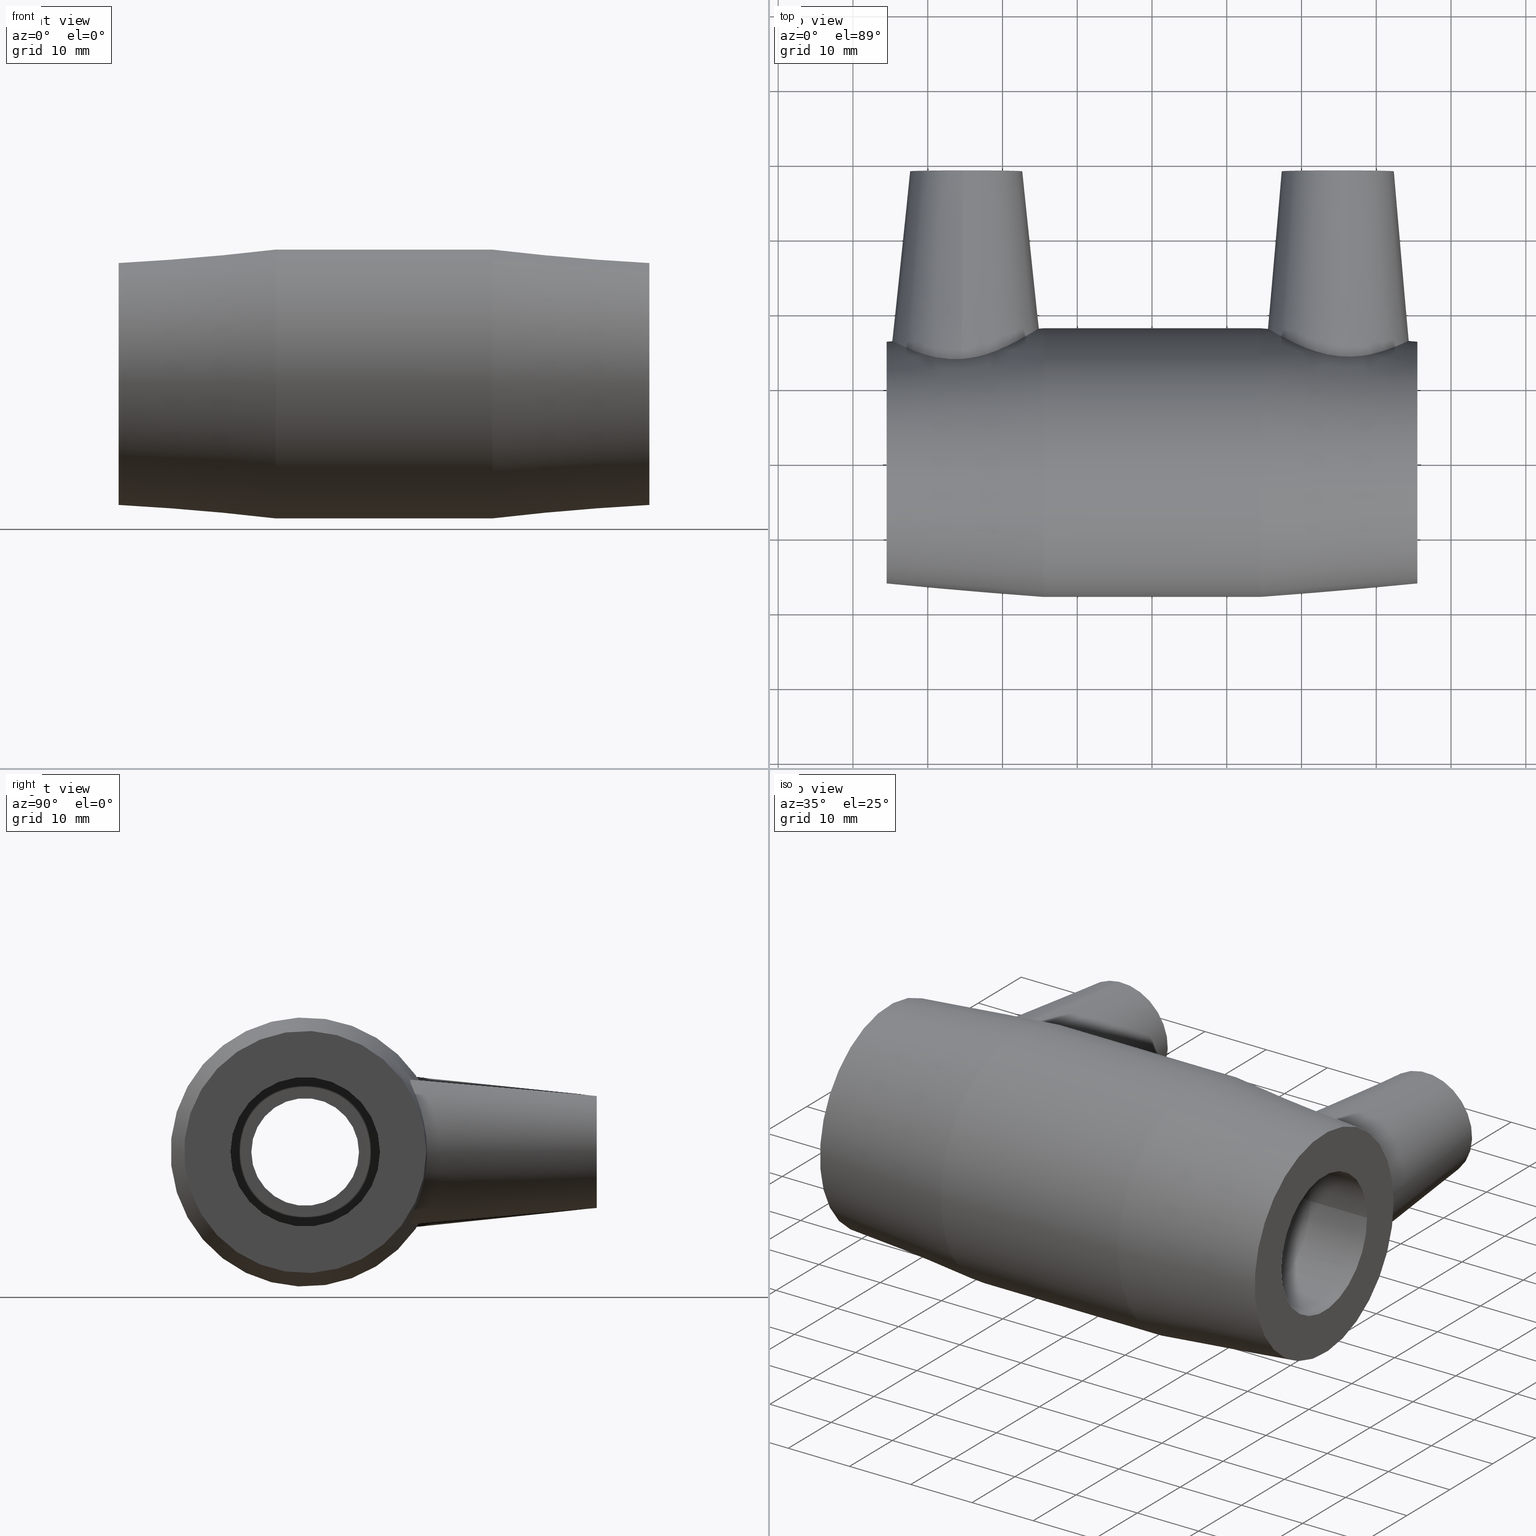
[diagram: canonical four-view strip — front | top / right | iso, engineering-drawing reading convention]
A machine part, canonical four-view strip (front | top / right | iso — engineering-drawing reading convention). The complete STEP part file that produces these views, byte-faithful:
ISO-10303-21;
HEADER;
/* Generated by software containing ST-Developer
 * from STEP Tools, Inc. (www.steptools.com) 
 */

FILE_DESCRIPTION(
/* description */ ('PLASSON REDUCING COUPLER 20-16'),
/* implementation_level */ '2;1');

FILE_NAME(
/* name */ 
'C:\\Dropbox\\KIMPROJECTS-Inventor\\99-16-3568-Processing\\ElectroFusi
on Fittings\\491104\\491104020016.ipt.stp',
/* time_stamp */ '2017-11-06T09:12:25+02:00',
/* author */ ('KIM'),
/* organization */ (''),
/* preprocessor_version */ 'ST-DEVELOPER v15.6',
/* originating_system */ 'Autodesk Inventor 2015',
/* authorisation */ '');

FILE_SCHEMA (('AUTOMOTIVE_DESIGN { 1 0 10303 214 3 1 1 }'));
ENDSEC;

DATA;
#10=MECHANICAL_DESIGN_GEOMETRIC_PRESENTATION_REPRESENTATION('',(#13),#671);
#11=SHAPE_REPRESENTATION_RELATIONSHIP('SRR','None',#680,#12);
#12=ADVANCED_BREP_SHAPE_REPRESENTATION($,(#14),#670);
#13=STYLED_ITEM('',(#689),#14);
#14=MANIFOLD_SOLID_BREP('Solid1',#334);
#15=B_SPLINE_CURVE_WITH_KNOTS('',3,(#527,#528,#529,#530,#531,#532,#533,
#534,#535,#536,#537,#538,#539,#540,#541,#542,#543,#544,#545,#546,#547,#548,
#549,#550,#551,#552,#553,#554,#555,#556,#557,#558,#559,#560,#561,#562,#563,
#564),.UNSPECIFIED.,.T.,.F.,(4,2,2,2,2,2,2,2,2,2,2,2,2,2,2,2,2,2,4),(0.,
0.176861838279988,0.353723676559975,0.70744735311995,1.0635954870431,1.41974362096625,
1.7758917548894,2.13203988881255,2.48576356537253,2.66262540365251,2.8394872419325,
3.23294618645652,3.62640513098054,4.00458566111133,4.38276619124212,4.7609467213729,
5.13912725150369,5.53258619602771,5.92604514055173),.UNSPECIFIED.);
#16=B_SPLINE_CURVE_WITH_KNOTS('',3,(#579,#580,#581,#582,#583,#584,#585,
#586,#587,#588,#589,#590,#591,#592,#593,#594,#595,#596,#597,#598,#599,#600,
#601,#602,#603,#604,#605,#606,#607,#608,#609,#610,#611,#612,#613,#614,#615,
#616),.UNSPECIFIED.,.T.,.F.,(4,2,2,2,2,2,2,2,2,2,2,2,2,2,2,2,2,2,4),(0.,
0.185299201020155,0.370598402040309,0.741196804080619,1.11369570266722,
1.48619460125382,1.85869349984042,2.23119239842702,2.60179080046733,2.78709000148748,
2.97238920250763,3.3877355594393,3.80308191637097,4.19848920143802,4.59389648650506,
4.98930377157211,5.38471105663916,5.80005741357083,6.2154037705025),
 .UNSPECIFIED.);
#17=CONICAL_SURFACE('',#348,7.5,5.);
#18=CONICAL_SURFACE('',#357,7.5,6.);
#19=CONICAL_SURFACE('',#361,17.1,4.89909245378776);
#20=CONICAL_SURFACE('',#367,10.4959653105634,12.);
#21=CONICAL_SURFACE('',#373,8.99999999999999,89.4270613023174);
#22=CONICAL_SURFACE('',#385,8.49596531056338,12.);
#23=CONICAL_SURFACE('',#391,17.1,4.89909245378775);
#24=FACE_BOUND('',#95,.T.);
#25=FACE_BOUND('',#97,.T.);
#26=FACE_BOUND('',#99,.T.);
#27=FACE_BOUND('',#101,.T.);
#28=FACE_BOUND('',#103,.T.);
#29=FACE_BOUND('',#105,.T.);
#30=FACE_BOUND('',#107,.T.);
#31=FACE_BOUND('',#109,.T.);
#32=FACE_BOUND('',#111,.T.);
#33=FACE_BOUND('',#113,.T.);
#34=FACE_BOUND('',#115,.T.);
#35=FACE_BOUND('',#117,.T.);
#36=FACE_BOUND('',#118,.T.);
#37=FACE_BOUND('',#120,.T.);
#38=FACE_BOUND('',#122,.T.);
#39=FACE_BOUND('',#124,.T.);
#40=FACE_BOUND('',#126,.T.);
#41=FACE_BOUND('',#128,.T.);
#42=FACE_BOUND('',#130,.T.);
#43=FACE_BOUND('',#132,.T.);
#44=FACE_BOUND('',#134,.T.);
#45=FACE_BOUND('',#136,.T.);
#46=FACE_BOUND('',#138,.T.);
#47=FACE_BOUND('',#140,.T.);
#48=FACE_BOUND('',#142,.T.);
#49=FACE_BOUND('',#144,.T.);
#50=FACE_BOUND('',#146,.T.);
#51=FACE_BOUND('',#148,.T.);
#52=FACE_BOUND('',#149,.T.);
#53=CYLINDRICAL_SURFACE('',#340,2.);
#54=CYLINDRICAL_SURFACE('',#342,5.);
#55=CYLINDRICAL_SURFACE('',#349,2.);
#56=CYLINDRICAL_SURFACE('',#351,5.);
#57=CYLINDRICAL_SURFACE('',#358,18.);
#58=CYLINDRICAL_SURFACE('',#365,9.99999999999999);
#59=CYLINDRICAL_SURFACE('',#371,9.99999999999999);
#60=CYLINDRICAL_SURFACE('',#377,7.19999999999999);
#61=CYLINDRICAL_SURFACE('',#381,8.);
#62=CYLINDRICAL_SURFACE('',#387,8.);
#63=FACE_OUTER_BOUND('',#92,.T.);
#64=FACE_OUTER_BOUND('',#93,.T.);
#65=FACE_OUTER_BOUND('',#94,.T.);
#66=FACE_OUTER_BOUND('',#96,.T.);
#67=FACE_OUTER_BOUND('',#98,.T.);
#68=FACE_OUTER_BOUND('',#100,.T.);
#69=FACE_OUTER_BOUND('',#102,.T.);
#70=FACE_OUTER_BOUND('',#104,.T.);
#71=FACE_OUTER_BOUND('',#106,.T.);
#72=FACE_OUTER_BOUND('',#108,.T.);
#73=FACE_OUTER_BOUND('',#110,.T.);
#74=FACE_OUTER_BOUND('',#112,.T.);
#75=FACE_OUTER_BOUND('',#114,.T.);
#76=FACE_OUTER_BOUND('',#116,.T.);
#77=FACE_OUTER_BOUND('',#119,.T.);
#78=FACE_OUTER_BOUND('',#121,.T.);
#79=FACE_OUTER_BOUND('',#123,.T.);
#80=FACE_OUTER_BOUND('',#125,.T.);
#81=FACE_OUTER_BOUND('',#127,.T.);
#82=FACE_OUTER_BOUND('',#129,.T.);
#83=FACE_OUTER_BOUND('',#131,.T.);
#84=FACE_OUTER_BOUND('',#133,.T.);
#85=FACE_OUTER_BOUND('',#135,.T.);
#86=FACE_OUTER_BOUND('',#137,.T.);
#87=FACE_OUTER_BOUND('',#139,.T.);
#88=FACE_OUTER_BOUND('',#141,.T.);
#89=FACE_OUTER_BOUND('',#143,.T.);
#90=FACE_OUTER_BOUND('',#145,.T.);
#91=FACE_OUTER_BOUND('',#147,.T.);
#92=EDGE_LOOP('',(#235));
#93=EDGE_LOOP('',(#236));
#94=EDGE_LOOP('',(#237));
#95=EDGE_LOOP('',(#238));
#96=EDGE_LOOP('',(#239));
#97=EDGE_LOOP('',(#240));
#98=EDGE_LOOP('',(#241));
#99=EDGE_LOOP('',(#242));
#100=EDGE_LOOP('',(#243));
#101=EDGE_LOOP('',(#244));
#102=EDGE_LOOP('',(#245));
#103=EDGE_LOOP('',(#246));
#104=EDGE_LOOP('',(#247));
#105=EDGE_LOOP('',(#248));
#106=EDGE_LOOP('',(#249));
#107=EDGE_LOOP('',(#250));
#108=EDGE_LOOP('',(#251));
#109=EDGE_LOOP('',(#252));
#110=EDGE_LOOP('',(#253));
#111=EDGE_LOOP('',(#254));
#112=EDGE_LOOP('',(#255));
#113=EDGE_LOOP('',(#256));
#114=EDGE_LOOP('',(#257));
#115=EDGE_LOOP('',(#258));
#116=EDGE_LOOP('',(#259));
#117=EDGE_LOOP('',(#260));
#118=EDGE_LOOP('',(#261));
#119=EDGE_LOOP('',(#262));
#120=EDGE_LOOP('',(#263));
#121=EDGE_LOOP('',(#264));
#122=EDGE_LOOP('',(#265));
#123=EDGE_LOOP('',(#266));
#124=EDGE_LOOP('',(#267));
#125=EDGE_LOOP('',(#268));
#126=EDGE_LOOP('',(#269));
#127=EDGE_LOOP('',(#270));
#128=EDGE_LOOP('',(#271));
#129=EDGE_LOOP('',(#272));
#130=EDGE_LOOP('',(#273));
#131=EDGE_LOOP('',(#274));
#132=EDGE_LOOP('',(#275));
#133=EDGE_LOOP('',(#276));
#134=EDGE_LOOP('',(#277));
#135=EDGE_LOOP('',(#278));
#136=EDGE_LOOP('',(#279));
#137=EDGE_LOOP('',(#280));
#138=EDGE_LOOP('',(#281));
#139=EDGE_LOOP('',(#282));
#140=EDGE_LOOP('',(#283));
#141=EDGE_LOOP('',(#284));
#142=EDGE_LOOP('',(#285));
#143=EDGE_LOOP('',(#286));
#144=EDGE_LOOP('',(#287));
#145=EDGE_LOOP('',(#288));
#146=EDGE_LOOP('',(#289));
#147=EDGE_LOOP('',(#290));
#148=EDGE_LOOP('',(#291));
#149=EDGE_LOOP('',(#292));
#150=CIRCLE('',#337,2.);
#151=CIRCLE('',#339,2.);
#152=CIRCLE('',#341,2.);
#153=CIRCLE('',#343,5.);
#154=CIRCLE('',#344,5.);
#155=CIRCLE('',#347,7.5);
#156=CIRCLE('',#350,2.);
#157=CIRCLE('',#352,5.);
#158=CIRCLE('',#353,5.);
#159=CIRCLE('',#356,7.5);
#160=CIRCLE('',#359,18.);
#161=CIRCLE('',#360,18.);
#162=CIRCLE('',#362,16.2);
#163=CIRCLE('',#364,9.99999999999999);
#164=CIRCLE('',#366,9.99999999999999);
#165=CIRCLE('',#368,10.9919306211268);
#166=CIRCLE('',#370,9.99999999999999);
#167=CIRCLE('',#372,9.99999999999999);
#168=CIRCLE('',#374,7.99999999999999);
#169=CIRCLE('',#376,7.19999999999999);
#170=CIRCLE('',#378,7.19999999999999);
#171=CIRCLE('',#380,7.99999999999999);
#172=CIRCLE('',#382,8.);
#173=CIRCLE('',#384,8.99193062112677);
#174=CIRCLE('',#386,8.);
#175=CIRCLE('',#388,8.);
#176=CIRCLE('',#390,16.2);
#177=VERTEX_POINT('',#508);
#178=VERTEX_POINT('',#511);
#179=VERTEX_POINT('',#514);
#180=VERTEX_POINT('',#517);
#181=VERTEX_POINT('',#519);
#182=VERTEX_POINT('',#523);
#183=VERTEX_POINT('',#526);
#184=VERTEX_POINT('',#566);
#185=VERTEX_POINT('',#569);
#186=VERTEX_POINT('',#571);
#187=VERTEX_POINT('',#575);
#188=VERTEX_POINT('',#578);
#189=VERTEX_POINT('',#618);
#190=VERTEX_POINT('',#620);
#191=VERTEX_POINT('',#623);
#192=VERTEX_POINT('',#626);
#193=VERTEX_POINT('',#629);
#194=VERTEX_POINT('',#632);
#195=VERTEX_POINT('',#635);
#196=VERTEX_POINT('',#638);
#197=VERTEX_POINT('',#641);
#198=VERTEX_POINT('',#644);
#199=VERTEX_POINT('',#647);
#200=VERTEX_POINT('',#650);
#201=VERTEX_POINT('',#653);
#202=VERTEX_POINT('',#656);
#203=VERTEX_POINT('',#659);
#204=VERTEX_POINT('',#662);
#205=VERTEX_POINT('',#665);
#206=EDGE_CURVE('',#177,#177,#150,.T.);
#207=EDGE_CURVE('',#178,#178,#151,.T.);
#208=EDGE_CURVE('',#179,#179,#152,.T.);
#209=EDGE_CURVE('',#180,#180,#153,.T.);
#210=EDGE_CURVE('',#181,#181,#154,.T.);
#211=EDGE_CURVE('',#182,#182,#155,.T.);
#212=EDGE_CURVE('',#183,#183,#15,.T.);
#213=EDGE_CURVE('',#184,#184,#156,.T.);
#214=EDGE_CURVE('',#185,#185,#157,.T.);
#215=EDGE_CURVE('',#186,#186,#158,.T.);
#216=EDGE_CURVE('',#187,#187,#159,.T.);
#217=EDGE_CURVE('',#188,#188,#16,.T.);
#218=EDGE_CURVE('',#189,#189,#160,.T.);
#219=EDGE_CURVE('',#190,#190,#161,.T.);
#220=EDGE_CURVE('',#191,#191,#162,.T.);
#221=EDGE_CURVE('',#192,#192,#163,.T.);
#222=EDGE_CURVE('',#193,#193,#164,.T.);
#223=EDGE_CURVE('',#194,#194,#165,.T.);
#224=EDGE_CURVE('',#195,#195,#166,.T.);
#225=EDGE_CURVE('',#196,#196,#167,.T.);
#226=EDGE_CURVE('',#197,#197,#168,.T.);
#227=EDGE_CURVE('',#198,#198,#169,.T.);
#228=EDGE_CURVE('',#199,#199,#170,.T.);
#229=EDGE_CURVE('',#200,#200,#171,.T.);
#230=EDGE_CURVE('',#201,#201,#172,.T.);
#231=EDGE_CURVE('',#202,#202,#173,.T.);
#232=EDGE_CURVE('',#203,#203,#174,.T.);
#233=EDGE_CURVE('',#204,#204,#175,.T.);
#234=EDGE_CURVE('',#205,#205,#176,.T.);
#235=ORIENTED_EDGE('',*,*,#206,.F.);
#236=ORIENTED_EDGE('',*,*,#207,.F.);
#237=ORIENTED_EDGE('',*,*,#206,.T.);
#238=ORIENTED_EDGE('',*,*,#208,.T.);
#239=ORIENTED_EDGE('',*,*,#209,.T.);
#240=ORIENTED_EDGE('',*,*,#210,.F.);
#241=ORIENTED_EDGE('',*,*,#209,.F.);
#242=ORIENTED_EDGE('',*,*,#208,.F.);
#243=ORIENTED_EDGE('',*,*,#211,.F.);
#244=ORIENTED_EDGE('',*,*,#210,.T.);
#245=ORIENTED_EDGE('',*,*,#211,.T.);
#246=ORIENTED_EDGE('',*,*,#212,.F.);
#247=ORIENTED_EDGE('',*,*,#207,.T.);
#248=ORIENTED_EDGE('',*,*,#213,.T.);
#249=ORIENTED_EDGE('',*,*,#214,.T.);
#250=ORIENTED_EDGE('',*,*,#215,.F.);
#251=ORIENTED_EDGE('',*,*,#214,.F.);
#252=ORIENTED_EDGE('',*,*,#213,.F.);
#253=ORIENTED_EDGE('',*,*,#216,.F.);
#254=ORIENTED_EDGE('',*,*,#215,.T.);
#255=ORIENTED_EDGE('',*,*,#216,.T.);
#256=ORIENTED_EDGE('',*,*,#217,.F.);
#257=ORIENTED_EDGE('',*,*,#218,.T.);
#258=ORIENTED_EDGE('',*,*,#219,.F.);
#259=ORIENTED_EDGE('',*,*,#220,.F.);
#260=ORIENTED_EDGE('',*,*,#212,.T.);
#261=ORIENTED_EDGE('',*,*,#219,.T.);
#262=ORIENTED_EDGE('',*,*,#220,.T.);
#263=ORIENTED_EDGE('',*,*,#221,.F.);
#264=ORIENTED_EDGE('',*,*,#222,.F.);
#265=ORIENTED_EDGE('',*,*,#221,.T.);
#266=ORIENTED_EDGE('',*,*,#223,.F.);
#267=ORIENTED_EDGE('',*,*,#222,.T.);
#268=ORIENTED_EDGE('',*,*,#223,.T.);
#269=ORIENTED_EDGE('',*,*,#224,.F.);
#270=ORIENTED_EDGE('',*,*,#225,.F.);
#271=ORIENTED_EDGE('',*,*,#224,.T.);
#272=ORIENTED_EDGE('',*,*,#226,.F.);
#273=ORIENTED_EDGE('',*,*,#225,.T.);
#274=ORIENTED_EDGE('',*,*,#226,.T.);
#275=ORIENTED_EDGE('',*,*,#227,.F.);
#276=ORIENTED_EDGE('',*,*,#228,.F.);
#277=ORIENTED_EDGE('',*,*,#227,.T.);
#278=ORIENTED_EDGE('',*,*,#229,.F.);
#279=ORIENTED_EDGE('',*,*,#228,.T.);
#280=ORIENTED_EDGE('',*,*,#230,.F.);
#281=ORIENTED_EDGE('',*,*,#229,.T.);
#282=ORIENTED_EDGE('',*,*,#231,.F.);
#283=ORIENTED_EDGE('',*,*,#230,.T.);
#284=ORIENTED_EDGE('',*,*,#232,.F.);
#285=ORIENTED_EDGE('',*,*,#231,.T.);
#286=ORIENTED_EDGE('',*,*,#233,.F.);
#287=ORIENTED_EDGE('',*,*,#232,.T.);
#288=ORIENTED_EDGE('',*,*,#234,.F.);
#289=ORIENTED_EDGE('',*,*,#233,.T.);
#290=ORIENTED_EDGE('',*,*,#218,.F.);
#291=ORIENTED_EDGE('',*,*,#217,.T.);
#292=ORIENTED_EDGE('',*,*,#234,.T.);
#293=PLANE('',#336);
#294=PLANE('',#338);
#295=PLANE('',#345);
#296=PLANE('',#346);
#297=PLANE('',#354);
#298=PLANE('',#355);
#299=PLANE('',#363);
#300=PLANE('',#369);
#301=PLANE('',#375);
#302=PLANE('',#379);
#303=PLANE('',#383);
#304=PLANE('',#389);
#305=ADVANCED_FACE('',(#63),#293,.T.);
#306=ADVANCED_FACE('',(#64),#294,.T.);
#307=ADVANCED_FACE('',(#65,#24),#53,.T.);
#308=ADVANCED_FACE('',(#66,#25),#54,.F.);
#309=ADVANCED_FACE('',(#67,#26),#295,.T.);
#310=ADVANCED_FACE('',(#68,#27),#296,.T.);
#311=ADVANCED_FACE('',(#69,#28),#17,.T.);
#312=ADVANCED_FACE('',(#70,#29),#55,.T.);
#313=ADVANCED_FACE('',(#71,#30),#56,.F.);
#314=ADVANCED_FACE('',(#72,#31),#297,.T.);
#315=ADVANCED_FACE('',(#73,#32),#298,.T.);
#316=ADVANCED_FACE('',(#74,#33),#18,.T.);
#317=ADVANCED_FACE('',(#75,#34),#57,.T.);
#318=ADVANCED_FACE('',(#76,#35,#36),#19,.T.);
#319=ADVANCED_FACE('',(#77,#37),#299,.T.);
#320=ADVANCED_FACE('',(#78,#38),#58,.F.);
#321=ADVANCED_FACE('',(#79,#39),#20,.F.);
#322=ADVANCED_FACE('',(#80,#40),#300,.T.);
#323=ADVANCED_FACE('',(#81,#41),#59,.F.);
#324=ADVANCED_FACE('',(#82,#42),#21,.F.);
#325=ADVANCED_FACE('',(#83,#43),#301,.T.);
#326=ADVANCED_FACE('',(#84,#44),#60,.F.);
#327=ADVANCED_FACE('',(#85,#45),#302,.T.);
#328=ADVANCED_FACE('',(#86,#46),#61,.F.);
#329=ADVANCED_FACE('',(#87,#47),#303,.T.);
#330=ADVANCED_FACE('',(#88,#48),#22,.F.);
#331=ADVANCED_FACE('',(#89,#49),#62,.F.);
#332=ADVANCED_FACE('',(#90,#50),#304,.T.);
#333=ADVANCED_FACE('',(#91,#51,#52),#23,.T.);
#334=CLOSED_SHELL('',(#305,#306,#307,#308,#309,#310,#311,#312,#313,#314,
#315,#316,#317,#318,#319,#320,#321,#322,#323,#324,#325,#326,#327,#328,#329,
#330,#331,#332,#333));
#335=AXIS2_PLACEMENT_3D('placement',#506,#392,#393);
#336=AXIS2_PLACEMENT_3D('',#507,#394,#395);
#337=AXIS2_PLACEMENT_3D('',#509,#396,#397);
#338=AXIS2_PLACEMENT_3D('',#510,#398,#399);
#339=AXIS2_PLACEMENT_3D('',#512,#400,#401);
#340=AXIS2_PLACEMENT_3D('',#513,#402,#403);
#341=AXIS2_PLACEMENT_3D('',#515,#404,#405);
#342=AXIS2_PLACEMENT_3D('',#516,#406,#407);
#343=AXIS2_PLACEMENT_3D('',#518,#408,#409);
#344=AXIS2_PLACEMENT_3D('',#520,#410,#411);
#345=AXIS2_PLACEMENT_3D('',#521,#412,#413);
#346=AXIS2_PLACEMENT_3D('',#522,#414,#415);
#347=AXIS2_PLACEMENT_3D('',#524,#416,#417);
#348=AXIS2_PLACEMENT_3D('',#525,#418,#419);
#349=AXIS2_PLACEMENT_3D('',#565,#420,#421);
#350=AXIS2_PLACEMENT_3D('',#567,#422,#423);
#351=AXIS2_PLACEMENT_3D('',#568,#424,#425);
#352=AXIS2_PLACEMENT_3D('',#570,#426,#427);
#353=AXIS2_PLACEMENT_3D('',#572,#428,#429);
#354=AXIS2_PLACEMENT_3D('',#573,#430,#431);
#355=AXIS2_PLACEMENT_3D('',#574,#432,#433);
#356=AXIS2_PLACEMENT_3D('',#576,#434,#435);
#357=AXIS2_PLACEMENT_3D('',#577,#436,#437);
#358=AXIS2_PLACEMENT_3D('',#617,#438,#439);
#359=AXIS2_PLACEMENT_3D('',#619,#440,#441);
#360=AXIS2_PLACEMENT_3D('',#621,#442,#443);
#361=AXIS2_PLACEMENT_3D('',#622,#444,#445);
#362=AXIS2_PLACEMENT_3D('',#624,#446,#447);
#363=AXIS2_PLACEMENT_3D('',#625,#448,#449);
#364=AXIS2_PLACEMENT_3D('',#627,#450,#451);
#365=AXIS2_PLACEMENT_3D('',#628,#452,#453);
#366=AXIS2_PLACEMENT_3D('',#630,#454,#455);
#367=AXIS2_PLACEMENT_3D('',#631,#456,#457);
#368=AXIS2_PLACEMENT_3D('',#633,#458,#459);
#369=AXIS2_PLACEMENT_3D('',#634,#460,#461);
#370=AXIS2_PLACEMENT_3D('',#636,#462,#463);
#371=AXIS2_PLACEMENT_3D('',#637,#464,#465);
#372=AXIS2_PLACEMENT_3D('',#639,#466,#467);
#373=AXIS2_PLACEMENT_3D('',#640,#468,#469);
#374=AXIS2_PLACEMENT_3D('',#642,#470,#471);
#375=AXIS2_PLACEMENT_3D('',#643,#472,#473);
#376=AXIS2_PLACEMENT_3D('',#645,#474,#475);
#377=AXIS2_PLACEMENT_3D('',#646,#476,#477);
#378=AXIS2_PLACEMENT_3D('',#648,#478,#479);
#379=AXIS2_PLACEMENT_3D('',#649,#480,#481);
#380=AXIS2_PLACEMENT_3D('',#651,#482,#483);
#381=AXIS2_PLACEMENT_3D('',#652,#484,#485);
#382=AXIS2_PLACEMENT_3D('',#654,#486,#487);
#383=AXIS2_PLACEMENT_3D('',#655,#488,#489);
#384=AXIS2_PLACEMENT_3D('',#657,#490,#491);
#385=AXIS2_PLACEMENT_3D('',#658,#492,#493);
#386=AXIS2_PLACEMENT_3D('',#660,#494,#495);
#387=AXIS2_PLACEMENT_3D('',#661,#496,#497);
#388=AXIS2_PLACEMENT_3D('',#663,#498,#499);
#389=AXIS2_PLACEMENT_3D('',#664,#500,#501);
#390=AXIS2_PLACEMENT_3D('',#666,#502,#503);
#391=AXIS2_PLACEMENT_3D('',#667,#504,#505);
#392=DIRECTION('axis',(0.,0.,1.));
#393=DIRECTION('refdir',(1.,0.,0.));
#394=DIRECTION('center_axis',(0.,1.,0.));
#395=DIRECTION('ref_axis',(0.,0.,1.));
#396=DIRECTION('center_axis',(0.,-1.,0.));
#397=DIRECTION('ref_axis',(1.,0.,0.));
#398=DIRECTION('center_axis',(0.,1.,0.));
#399=DIRECTION('ref_axis',(0.,0.,1.));
#400=DIRECTION('center_axis',(0.,-1.,0.));
#401=DIRECTION('ref_axis',(-1.,0.,0.));
#402=DIRECTION('center_axis',(0.,-1.,0.));
#403=DIRECTION('ref_axis',(1.,0.,0.));
#404=DIRECTION('center_axis',(0.,1.,0.));
#405=DIRECTION('ref_axis',(1.,0.,0.));
#406=DIRECTION('center_axis',(0.,-1.,0.));
#407=DIRECTION('ref_axis',(1.,0.,0.));
#408=DIRECTION('center_axis',(0.,-1.,0.));
#409=DIRECTION('ref_axis',(1.,0.,0.));
#410=DIRECTION('center_axis',(0.,-1.,0.));
#411=DIRECTION('ref_axis',(1.,0.,0.));
#412=DIRECTION('center_axis',(0.,1.,0.));
#413=DIRECTION('ref_axis',(0.,0.,1.));
#414=DIRECTION('center_axis',(0.,1.,0.));
#415=DIRECTION('ref_axis',(0.,0.,1.));
#416=DIRECTION('center_axis',(0.,-1.,0.));
#417=DIRECTION('ref_axis',(1.,0.,0.));
#418=DIRECTION('center_axis',(0.,-1.,0.));
#419=DIRECTION('ref_axis',(1.,0.,0.));
#420=DIRECTION('center_axis',(0.,-1.,0.));
#421=DIRECTION('ref_axis',(-1.,0.,0.));
#422=DIRECTION('center_axis',(0.,1.,0.));
#423=DIRECTION('ref_axis',(-1.,0.,0.));
#424=DIRECTION('center_axis',(0.,-1.,0.));
#425=DIRECTION('ref_axis',(-1.,0.,0.));
#426=DIRECTION('center_axis',(0.,-1.,0.));
#427=DIRECTION('ref_axis',(-1.,0.,0.));
#428=DIRECTION('center_axis',(0.,-1.,0.));
#429=DIRECTION('ref_axis',(-1.,0.,0.));
#430=DIRECTION('center_axis',(0.,1.,0.));
#431=DIRECTION('ref_axis',(0.,0.,1.));
#432=DIRECTION('center_axis',(0.,1.,0.));
#433=DIRECTION('ref_axis',(0.,0.,1.));
#434=DIRECTION('center_axis',(0.,-1.,0.));
#435=DIRECTION('ref_axis',(1.,0.,0.));
#436=DIRECTION('center_axis',(0.,-1.,0.));
#437=DIRECTION('ref_axis',(1.,0.,0.));
#438=DIRECTION('center_axis',(1.,1.83697019872103E-16,0.));
#439=DIRECTION('ref_axis',(-1.96131485542617E-16,1.,0.));
#440=DIRECTION('center_axis',(1.,1.83697019872103E-16,0.));
#441=DIRECTION('ref_axis',(0.,0.,-1.));
#442=DIRECTION('center_axis',(1.,1.83697019872103E-16,0.));
#443=DIRECTION('ref_axis',(0.,0.,-1.));
#444=DIRECTION('center_axis',(-1.,-1.83697019872103E-16,0.));
#445=DIRECTION('ref_axis',(-1.96131485542618E-16,1.,0.));
#446=DIRECTION('center_axis',(1.,1.83697019872103E-16,0.));
#447=DIRECTION('ref_axis',(0.,0.,-1.));
#448=DIRECTION('center_axis',(1.,1.83697019872103E-16,0.));
#449=DIRECTION('ref_axis',(0.,0.,-1.));
#450=DIRECTION('center_axis',(1.,1.83697019872103E-16,0.));
#451=DIRECTION('ref_axis',(0.,0.,-1.));
#452=DIRECTION('center_axis',(1.,1.83697019872103E-16,0.));
#453=DIRECTION('ref_axis',(-1.96131485542617E-16,1.,0.));
#454=DIRECTION('center_axis',(1.,1.83697019872103E-16,0.));
#455=DIRECTION('ref_axis',(0.,0.,-1.));
#456=DIRECTION('center_axis',(-1.,-1.83697019872103E-16,0.));
#457=DIRECTION('ref_axis',(-1.96131485542618E-16,1.,0.));
#458=DIRECTION('center_axis',(1.,1.83697019872103E-16,0.));
#459=DIRECTION('ref_axis',(0.,0.,-1.));
#460=DIRECTION('center_axis',(1.,1.83697019872103E-16,0.));
#461=DIRECTION('ref_axis',(0.,0.,-1.));
#462=DIRECTION('center_axis',(1.,1.83697019872103E-16,0.));
#463=DIRECTION('ref_axis',(0.,0.,-1.));
#464=DIRECTION('center_axis',(1.,1.83697019872103E-16,0.));
#465=DIRECTION('ref_axis',(-1.96131485542617E-16,1.,0.));
#466=DIRECTION('center_axis',(1.,1.83697019872103E-16,0.));
#467=DIRECTION('ref_axis',(0.,0.,-1.));
#468=DIRECTION('center_axis',(1.,1.83697019872103E-16,0.));
#469=DIRECTION('ref_axis',(-1.96131485542618E-16,1.,0.));
#470=DIRECTION('center_axis',(1.,1.83697019872103E-16,0.));
#471=DIRECTION('ref_axis',(0.,0.,-1.));
#472=DIRECTION('center_axis',(1.,1.83697019872103E-16,0.));
#473=DIRECTION('ref_axis',(0.,0.,-1.));
#474=DIRECTION('center_axis',(1.,1.83697019872103E-16,0.));
#475=DIRECTION('ref_axis',(0.,0.,-1.));
#476=DIRECTION('center_axis',(1.,1.83697019872103E-16,0.));
#477=DIRECTION('ref_axis',(-1.96131485542618E-16,1.,0.));
#478=DIRECTION('center_axis',(1.,1.83697019872103E-16,0.));
#479=DIRECTION('ref_axis',(0.,0.,-1.));
#480=DIRECTION('center_axis',(-1.,-1.83697019872103E-16,0.));
#481=DIRECTION('ref_axis',(0.,0.,1.));
#482=DIRECTION('center_axis',(1.,1.83697019872103E-16,0.));
#483=DIRECTION('ref_axis',(0.,0.,-1.));
#484=DIRECTION('center_axis',(1.,1.83697019872103E-16,0.));
#485=DIRECTION('ref_axis',(-1.96131485542617E-16,1.,0.));
#486=DIRECTION('center_axis',(1.,1.83697019872103E-16,0.));
#487=DIRECTION('ref_axis',(0.,0.,-1.));
#488=DIRECTION('center_axis',(-1.,-1.83697019872103E-16,0.));
#489=DIRECTION('ref_axis',(0.,0.,1.));
#490=DIRECTION('center_axis',(1.,1.83697019872103E-16,0.));
#491=DIRECTION('ref_axis',(0.,0.,-1.));
#492=DIRECTION('center_axis',(1.,1.83697019872103E-16,0.));
#493=DIRECTION('ref_axis',(-1.96131485542618E-16,1.,0.));
#494=DIRECTION('center_axis',(1.,1.83697019872103E-16,0.));
#495=DIRECTION('ref_axis',(0.,0.,-1.));
#496=DIRECTION('center_axis',(1.,1.83697019872103E-16,0.));
#497=DIRECTION('ref_axis',(-1.96131485542617E-16,1.,0.));
#498=DIRECTION('center_axis',(1.,1.83697019872103E-16,0.));
#499=DIRECTION('ref_axis',(0.,0.,-1.));
#500=DIRECTION('center_axis',(-1.,-1.83697019872103E-16,0.));
#501=DIRECTION('ref_axis',(0.,0.,1.));
#502=DIRECTION('center_axis',(1.,1.83697019872103E-16,0.));
#503=DIRECTION('ref_axis',(0.,0.,-1.));
#504=DIRECTION('center_axis',(1.,1.83697019872103E-16,0.));
#505=DIRECTION('ref_axis',(-1.96131485542617E-16,1.,0.));
#506=CARTESIAN_POINT('',(0.,0.,0.));
#507=CARTESIAN_POINT('Origin',(24.85,36.,0.));
#508=CARTESIAN_POINT('',(26.85,36.,-2.44929359829471E-16));
#509=CARTESIAN_POINT('Origin',(24.85,36.,0.));
#510=CARTESIAN_POINT('Origin',(-24.85,36.,0.));
#511=CARTESIAN_POINT('',(-22.85,36.,-2.44929359829471E-16));
#512=CARTESIAN_POINT('Origin',(-24.85,36.,0.));
#513=CARTESIAN_POINT('Origin',(24.85,39.,0.));
#514=CARTESIAN_POINT('',(22.85,25.,2.44929359829471E-16));
#515=CARTESIAN_POINT('Origin',(24.85,25.,0.));
#516=CARTESIAN_POINT('Origin',(24.85,39.,0.));
#517=CARTESIAN_POINT('',(19.85,25.,6.12323399573677E-16));
#518=CARTESIAN_POINT('Origin',(24.85,25.,0.));
#519=CARTESIAN_POINT('',(19.85,39.,6.12323399573677E-16));
#520=CARTESIAN_POINT('Origin',(24.85,39.,0.));
#521=CARTESIAN_POINT('Origin',(24.85,25.,9.25185853854297E-17));
#522=CARTESIAN_POINT('Origin',(24.85,39.,1.2335811384724E-16));
#523=CARTESIAN_POINT('',(17.35,39.,9.18485099360515E-16));
#524=CARTESIAN_POINT('Origin',(24.85,39.,0.));
#525=CARTESIAN_POINT('Origin',(24.85,39.,0.));
#526=CARTESIAN_POINT('',(25.3791488612377,14.0658836952062,-9.66698113265337));
#527=CARTESIAN_POINT('Ctrl Pts',(25.3791488612377,14.0658836952062,-9.66698113265337));
#528=CARTESIAN_POINT('Ctrl Pts',(25.9665345276165,14.0243908107581,-9.63846455027638));
#529=CARTESIAN_POINT('Ctrl Pts',(26.5676703615202,14.0223990628618,-9.55122535415776));
#530=CARTESIAN_POINT('Ctrl Pts',(27.750847459526,14.099351256142,-9.25370281329846));
#531=CARTESIAN_POINT('Ctrl Pts',(28.3329318902849,14.1779871557753,-9.04351154775006));
#532=CARTESIAN_POINT('Ctrl Pts',(29.9909057347742,14.4985406661509,-8.25051453568167));
#533=CARTESIAN_POINT('Ctrl Pts',(30.9783944262316,14.8236244923794,-7.49635889800002));
#534=CARTESIAN_POINT('Ctrl Pts',(32.5302343559704,15.4196814906469,-5.8124356113657));
#535=CARTESIAN_POINT('Ctrl Pts',(33.2064724953891,15.7352665990725,-4.75743647178172));
#536=CARTESIAN_POINT('Ctrl Pts',(34.1099541619134,16.1776966269926,-2.44548553440506));
#537=CARTESIAN_POINT('Ctrl Pts',(34.3360127550981,16.2997703352773,-1.1871604464105));
#538=CARTESIAN_POINT('Ctrl Pts',(34.3360127550981,16.2997703352773,1.1871604464105));
#539=CARTESIAN_POINT('Ctrl Pts',(34.1099541619134,16.1776966269926,2.44548553440506));
#540=CARTESIAN_POINT('Ctrl Pts',(33.2064724953891,15.7352665990725,4.75743647178172));
#541=CARTESIAN_POINT('Ctrl Pts',(32.5302343559704,15.4196814906469,5.8124356113657));
#542=CARTESIAN_POINT('Ctrl Pts',(30.9783944262316,14.8236244923794,7.49635889800002));
#543=CARTESIAN_POINT('Ctrl Pts',(29.9909057347742,14.4985406661509,8.25051453568167));
#544=CARTESIAN_POINT('Ctrl Pts',(28.3329318902849,14.1779871557753,9.04351154775006));
#545=CARTESIAN_POINT('Ctrl Pts',(27.750847459526,14.099351256142,9.25370281329846));
#546=CARTESIAN_POINT('Ctrl Pts',(26.5676703615202,14.0223990628618,9.55122535415776));
#547=CARTESIAN_POINT('Ctrl Pts',(25.9665345276165,14.0243908107581,9.63846455027638));
#548=CARTESIAN_POINT('Ctrl Pts',(24.0724105248644,14.1581916044702,9.73042107262346));
#549=CARTESIAN_POINT('Ctrl Pts',(22.7252896866123,14.4657422312426,9.50078722870933));
#550=CARTESIAN_POINT('Ctrl Pts',(20.2881323069032,15.3047057631488,8.51810163156874));
#551=CARTESIAN_POINT('Ctrl Pts',(19.1933705083321,15.8223461033869,7.76506465266315));
#552=CARTESIAN_POINT('Ctrl Pts',(17.4936327345864,16.7070392213616,6.0492352719928));
#553=CARTESIAN_POINT('Ctrl Pts',(16.7563604967155,17.1415393348686,4.9763965889061));
#554=CARTESIAN_POINT('Ctrl Pts',(15.761302529362,17.7473805674012,2.58304602450949));
#555=CARTESIAN_POINT('Ctrl Pts',(15.5052000423883,17.9138399963667,1.26060176710262));
#556=CARTESIAN_POINT('Ctrl Pts',(15.5052000423883,17.9138399963667,-1.26060176710262));
#557=CARTESIAN_POINT('Ctrl Pts',(15.761302529362,17.7473805674012,-2.58304602450949));
#558=CARTESIAN_POINT('Ctrl Pts',(16.7563604967155,17.1415393348686,-4.9763965889061));
#559=CARTESIAN_POINT('Ctrl Pts',(17.4936327345864,16.7070392213616,-6.0492352719928));
#560=CARTESIAN_POINT('Ctrl Pts',(19.1933705083321,15.8223461033869,-7.76506465266314));
#561=CARTESIAN_POINT('Ctrl Pts',(20.2881323069032,15.3047057631488,-8.51810163156874));
#562=CARTESIAN_POINT('Ctrl Pts',(22.7252896866123,14.4657422312426,-9.50078722870933));
#563=CARTESIAN_POINT('Ctrl Pts',(24.0724105248644,14.1581916044702,-9.73042107262346));
#564=CARTESIAN_POINT('Ctrl Pts',(25.3791488612377,14.0658836952062,-9.66698113265337));
#565=CARTESIAN_POINT('Origin',(-24.85,39.,0.));
#566=CARTESIAN_POINT('',(-22.85,25.,-2.44929359829471E-16));
#567=CARTESIAN_POINT('Origin',(-24.85,25.,0.));
#568=CARTESIAN_POINT('Origin',(-24.85,39.,0.));
#569=CARTESIAN_POINT('',(-19.85,25.,-6.12323399573677E-16));
#570=CARTESIAN_POINT('Origin',(-24.85,25.,0.));
#571=CARTESIAN_POINT('',(-19.85,39.,-6.12323399573677E-16));
#572=CARTESIAN_POINT('Origin',(-24.85,39.,0.));
#573=CARTESIAN_POINT('Origin',(-24.85,25.,-9.25185853854297E-17));
#574=CARTESIAN_POINT('Origin',(-24.85,39.,1.2335811384724E-16));
#575=CARTESIAN_POINT('',(-32.35,39.,9.18485099360515E-16));
#576=CARTESIAN_POINT('Origin',(-24.85,39.,0.));
#577=CARTESIAN_POINT('Origin',(-24.85,39.,0.));
#578=CARTESIAN_POINT('',(-25.4400773461064,13.7225999164325,10.139606456612));
#579=CARTESIAN_POINT('Ctrl Pts',(-25.4400773461065,13.7225999164326,10.139606456612));
#580=CARTESIAN_POINT('Ctrl Pts',(-26.0554848061283,13.6801755537237,10.1082591649427));
#581=CARTESIAN_POINT('Ctrl Pts',(-26.6836558126022,13.6833117082209,10.0143419986184));
#582=CARTESIAN_POINT('Ctrl Pts',(-27.917326713401,13.7808855108945,9.69703784869612));
#583=CARTESIAN_POINT('Ctrl Pts',(-28.5228890839462,13.8749109819528,9.47376717065599));
#584=CARTESIAN_POINT('Ctrl Pts',(-30.2449859089782,14.2491836060499,8.63497623960071));
#585=CARTESIAN_POINT('Ctrl Pts',(-31.267289519206,14.6192269678355,7.84129932997885));
#586=CARTESIAN_POINT('Ctrl Pts',(-32.8714283514107,15.2890173803577,6.07675864335825));
#587=CARTESIAN_POINT('Ctrl Pts',(-33.5704214796696,15.6398730455991,4.97385128769273));
#588=CARTESIAN_POINT('Ctrl Pts',(-34.5051770921332,16.1304111960584,2.55707376897077));
#589=CARTESIAN_POINT('Ctrl Pts',(-34.7395254991271,16.2651835286462,1.24166299528867));
#590=CARTESIAN_POINT('Ctrl Pts',(-34.7395254991271,16.2651835286462,-1.24166299528866));
#591=CARTESIAN_POINT('Ctrl Pts',(-34.5051770921332,16.1304111960584,-2.55707376897077));
#592=CARTESIAN_POINT('Ctrl Pts',(-33.5704214796697,15.6398730455991,-4.97385128769272));
#593=CARTESIAN_POINT('Ctrl Pts',(-32.8714283514107,15.2890173803577,-6.07675864335825));
#594=CARTESIAN_POINT('Ctrl Pts',(-31.267289519206,14.6192269678355,-7.84129932997885));
#595=CARTESIAN_POINT('Ctrl Pts',(-30.2449859089782,14.2491836060499,-8.6349762396007));
#596=CARTESIAN_POINT('Ctrl Pts',(-28.5228890839462,13.8749109819528,-9.47376717065599));
#597=CARTESIAN_POINT('Ctrl Pts',(-27.917326713401,13.7808855108945,-9.69703784869612));
#598=CARTESIAN_POINT('Ctrl Pts',(-26.6836558126022,13.6833117082209,-10.0143419986184));
#599=CARTESIAN_POINT('Ctrl Pts',(-26.0554848061283,13.6801755537237,-10.1082591649427));
#600=CARTESIAN_POINT('Ctrl Pts',(-24.0606475097046,13.81769371284,-10.2098711060158));
#601=CARTESIAN_POINT('Ctrl Pts',(-22.6489616694074,14.1614685227023,-9.96355181723278));
#602=CARTESIAN_POINT('Ctrl Pts',(-20.1010772865265,15.0941052828797,-8.92144372205494));
#603=CARTESIAN_POINT('Ctrl Pts',(-18.959366888647,15.6672467928001,-8.12512863328076));
#604=CARTESIAN_POINT('Ctrl Pts',(-17.1958170252626,16.6363915937125,-6.32118237547666));
#605=CARTESIAN_POINT('Ctrl Pts',(-16.4332411469822,17.1081087825257,-5.20036181057903));
#606=CARTESIAN_POINT('Ctrl Pts',(-15.4029047925954,17.7651306421856,-2.69984050890149));
#607=CARTESIAN_POINT('Ctrl Pts',(-15.1370717220362,17.9453938523969,-1.31802428355683));
#608=CARTESIAN_POINT('Ctrl Pts',(-15.1370717220362,17.9453938523969,1.31802428355682));
#609=CARTESIAN_POINT('Ctrl Pts',(-15.4029047925954,17.7651306421856,2.69984050890149));
#610=CARTESIAN_POINT('Ctrl Pts',(-16.4332411469822,17.1081087825257,5.20036181057902));
#611=CARTESIAN_POINT('Ctrl Pts',(-17.1958170252626,16.6363915937125,6.32118237547666));
#612=CARTESIAN_POINT('Ctrl Pts',(-18.959366888647,15.6672467928001,8.12512863328075));
#613=CARTESIAN_POINT('Ctrl Pts',(-20.1010772865265,15.0941052828797,8.92144372205493));
#614=CARTESIAN_POINT('Ctrl Pts',(-22.6489616694074,14.1614685227023,9.96355181723278));
#615=CARTESIAN_POINT('Ctrl Pts',(-24.0606475097046,13.81769371284,10.2098711060158));
#616=CARTESIAN_POINT('Ctrl Pts',(-25.4400773461065,13.7225999164326,10.139606456612));
#617=CARTESIAN_POINT('Origin',(7.245,7.85212911443304E-15,0.));
#618=CARTESIAN_POINT('',(-14.5,18.,0.));
#619=CARTESIAN_POINT('Origin',(-14.5,3.85763741731416E-15,0.));
#620=CARTESIAN_POINT('',(14.5,18.,0.));
#621=CARTESIAN_POINT('Origin',(14.5,9.18485099360515E-15,0.));
#622=CARTESIAN_POINT('Origin',(25.,1.11136697022622E-14,0.));
#623=CARTESIAN_POINT('',(35.5,16.2,0.));
#624=CARTESIAN_POINT('Origin',(35.5,1.30424884109193E-14,0.));
#625=CARTESIAN_POINT('Origin',(35.5,10.,0.));
#626=CARTESIAN_POINT('',(35.5,10.,0.));
#627=CARTESIAN_POINT('Origin',(35.5,1.30424884109193E-14,0.));
#628=CARTESIAN_POINT('Origin',(30.8333333333333,1.21852356515162E-14,0.));
#629=CARTESIAN_POINT('',(26.1666666666667,10.,0.));
#630=CARTESIAN_POINT('Origin',(26.1666666666667,1.1327982892113E-14,0.));
#631=CARTESIAN_POINT('Origin',(23.8333333333333,1.08993565124114E-14,0.));
#632=CARTESIAN_POINT('',(21.5,10.9919306211268,0.));
#633=CARTESIAN_POINT('Origin',(21.5,1.04707301327099E-14,0.));
#634=CARTESIAN_POINT('Origin',(21.5,10.,0.));
#635=CARTESIAN_POINT('',(21.5,10.,0.));
#636=CARTESIAN_POINT('Origin',(21.5,1.04707301327099E-14,0.));
#637=CARTESIAN_POINT('Origin',(11.,8.54191142405279E-15,0.));
#638=CARTESIAN_POINT('',(0.499999999999994,10.,0.));
#639=CARTESIAN_POINT('Origin',(0.499999999999994,6.61309271539571E-15,0.));
#640=CARTESIAN_POINT('Origin',(0.489999999999995,6.61125574519699E-15,0.));
#641=CARTESIAN_POINT('',(0.479999999999996,8.,0.));
#642=CARTESIAN_POINT('Origin',(0.479999999999996,6.60941877499827E-15,0.));
#643=CARTESIAN_POINT('Origin',(0.479999999999997,7.2,0.));
#644=CARTESIAN_POINT('',(0.479999999999997,7.2,0.));
#645=CARTESIAN_POINT('Origin',(0.479999999999996,6.60941877499827E-15,0.));
#646=CARTESIAN_POINT('Origin',(-0.0100000000000033,6.51940723526094E-15,
0.));
#647=CARTESIAN_POINT('',(-0.500000000000003,7.2,0.));
#648=CARTESIAN_POINT('Origin',(-0.500000000000003,6.4293956955236E-15,0.));
#649=CARTESIAN_POINT('Origin',(-0.500000000000003,8.,0.));
#650=CARTESIAN_POINT('',(-0.500000000000003,8.,0.));
#651=CARTESIAN_POINT('Origin',(-0.500000000000003,6.4293956955236E-15,0.));
#652=CARTESIAN_POINT('Origin',(-11.,4.50057698686652E-15,0.));
#653=CARTESIAN_POINT('',(-21.5,8.,0.));
#654=CARTESIAN_POINT('Origin',(-21.5,2.57175827820944E-15,0.));
#655=CARTESIAN_POINT('Origin',(-21.5,8.99193062112677,0.));
#656=CARTESIAN_POINT('',(-21.5,8.99193062112677,0.));
#657=CARTESIAN_POINT('Origin',(-21.5,2.57175827820944E-15,0.));
#658=CARTESIAN_POINT('Origin',(-23.8333333333333,2.14313189850787E-15,0.));
#659=CARTESIAN_POINT('',(-26.1666666666667,8.,0.));
#660=CARTESIAN_POINT('Origin',(-26.1666666666667,1.71450551880629E-15,0.));
#661=CARTESIAN_POINT('Origin',(-30.8333333333333,8.57252759403147E-16,0.));
#662=CARTESIAN_POINT('',(-35.5,8.,0.));
#663=CARTESIAN_POINT('Origin',(-35.5,0.,0.));
#664=CARTESIAN_POINT('Origin',(-35.5,16.2,0.));
#665=CARTESIAN_POINT('',(-35.5,16.2,0.));
#666=CARTESIAN_POINT('Origin',(-35.5,2.46519032881566E-31,0.));
#667=CARTESIAN_POINT('Origin',(-25.,1.92881870865708E-15,0.));
#668=UNCERTAINTY_MEASURE_WITH_UNIT(LENGTH_MEASURE(0.01),#672,
'DISTANCE_ACCURACY_VALUE',
'Maximum model space distance between geometric entities at asserted c
onnectivities');
#669=UNCERTAINTY_MEASURE_WITH_UNIT(LENGTH_MEASURE(1.E-6),#672,
'DISTANCE_ACCURACY_VALUE',
'Maximum model space distance between geometric entities at asserted c
onnectivities');
#670=(
GEOMETRIC_REPRESENTATION_CONTEXT(3)
GLOBAL_UNCERTAINTY_ASSIGNED_CONTEXT((#668))
GLOBAL_UNIT_ASSIGNED_CONTEXT((#672,#675,#673))
REPRESENTATION_CONTEXT('','3D')
);
#671=(
GEOMETRIC_REPRESENTATION_CONTEXT(3)
GLOBAL_UNCERTAINTY_ASSIGNED_CONTEXT((#669))
GLOBAL_UNIT_ASSIGNED_CONTEXT((#672,#675,#673))
REPRESENTATION_CONTEXT('','3D')
);
#672=(
LENGTH_UNIT()
NAMED_UNIT(*)
SI_UNIT(.MILLI.,.METRE.)
);
#673=(
NAMED_UNIT(*)
SI_UNIT($,.STERADIAN.)
SOLID_ANGLE_UNIT()
);
#674=DIMENSIONAL_EXPONENTS(0.,0.,0.,0.,0.,0.,0.);
#675=(
CONVERSION_BASED_UNIT('degree',#677)
NAMED_UNIT(#674)
PLANE_ANGLE_UNIT()
);
#676=(
NAMED_UNIT(*)
PLANE_ANGLE_UNIT()
SI_UNIT($,.RADIAN.)
);
#677=PLANE_ANGLE_MEASURE_WITH_UNIT(PLANE_ANGLE_MEASURE(0.01745329252),#676);
#678=SHAPE_DEFINITION_REPRESENTATION(#679,#680);
#679=PRODUCT_DEFINITION_SHAPE('',$,#682);
#680=SHAPE_REPRESENTATION('',(#335),#670);
#681=PRODUCT_DEFINITION_CONTEXT('part definition',#686,'design');
#682=PRODUCT_DEFINITION('491104020016','491104020016',#683,#681);
#683=PRODUCT_DEFINITION_FORMATION('',$,#688);
#684=PRODUCT_RELATED_PRODUCT_CATEGORY('491104020016','491104020016',(#688));
#685=APPLICATION_PROTOCOL_DEFINITION('international standard',
'automotive_design',2009,#686);
#686=APPLICATION_CONTEXT(
'Core Data for Automotive Mechanical Design Process');
#687=PRODUCT_CONTEXT('part definition',#686,'mechanical');
#688=PRODUCT('491104020016','491104020016',$,(#687));
#689=PRESENTATION_STYLE_ASSIGNMENT((#690));
#690=SURFACE_STYLE_USAGE(.BOTH.,#691);
#691=SURFACE_SIDE_STYLE($,(#692));
#692=SURFACE_STYLE_FILL_AREA(#693);
#693=FILL_AREA_STYLE($,(#694));
#694=FILL_AREA_STYLE_COLOUR($,#695);
#695=COLOUR_RGB('',0.749019607843137,0.749019607843137,0.749019607843137);
ENDSEC;
END-ISO-10303-21;
